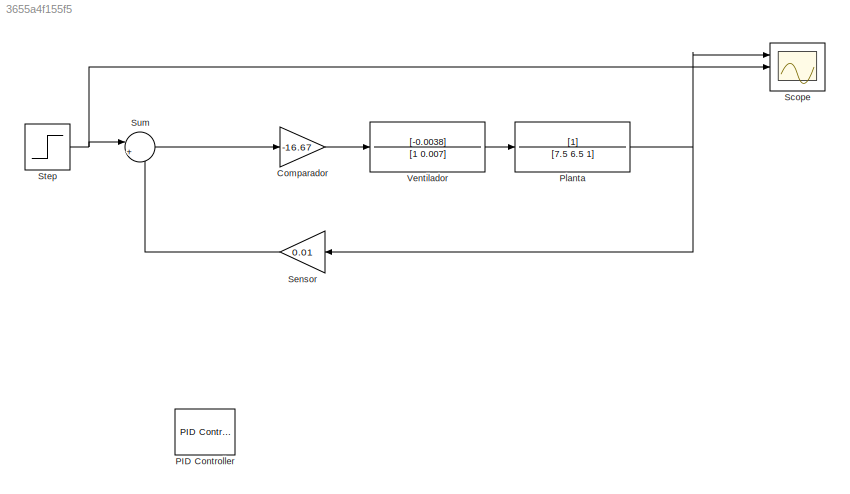
MODEL slx_3655a4f155f5
KIND model
CONFIG AbsTol = auto
CONFIG EnableMultiTasking = off
CONFIG FixedStep = auto
CONFIG MaxStep = auto
CONFIG MinStep = auto
CONFIG RelTol = 1e-3
CONFIG SampleTimeConstraint = Unconstrained
CONFIG SolverName = VariableStepAuto
CONFIG StartTime = 0.0
CONFIG StopTime = 1000
BLOCK [Gain] Comparador
  Gain = -16.67
BLOCK [Reference] PID Controller  REF=slpidlib/PID Controller
  Ports = [1, 1]
  SourceBlock = slpidlib/PID Controller
  SourceProductBaseCode = SL
  SourceType = PID 1dof
BLOCK [TransferFcn] Planta
  Denominator = [7.5 6.5 1]
BLOCK [Scope] Scope
  Floating = off
  NumInputPorts = 3
  Ports = [3]
  ScopeSpecificationString = Simulink.scopes.TimeScopeBlockCfg('CurrentConfiguration', extmgr.ConfigurationSet(extmgr.Configuration('Core','General UI',true),extmgr.Configuration('Core','Source UI',true),extmgr.Configuration('Sources','WiredSimulink',true),extmgr.Configuration('Visuals','Time Domain',true,'SerializedDisplays',{struct('MinYLimReal','-1.03679','MaxYLimReal','9.33113','YLabelReal','','MinYLimMag','0.00000','MaxY...<+1372ch>
BLOCK [Gain] Sensor
  Gain = 0.01
  NameLocation = top
BLOCK [Step] Step
  SampleTime = 0
BLOCK [Sum] Sum
  Inputs = |+-
  Ports = [2, 1]
BLOCK [TransferFcn] Ventilador
  Denominator = [1 0.007]
  Numerator = [-0.0038]
LINE Comparador:1 -> Ventilador:1
NET Planta:1 -> Scope:1, Sensor:1
LINE Sensor:1 -> Sum:2
NET Step:1 -> Scope:2, Sum:1
LINE Sum:1 -> Comparador:1
LINE Ventilador:1 -> Planta:1
note: NET lines group one-source signal fan-out (src -> all destinations, sorted); 1:1 wires keep LINE
